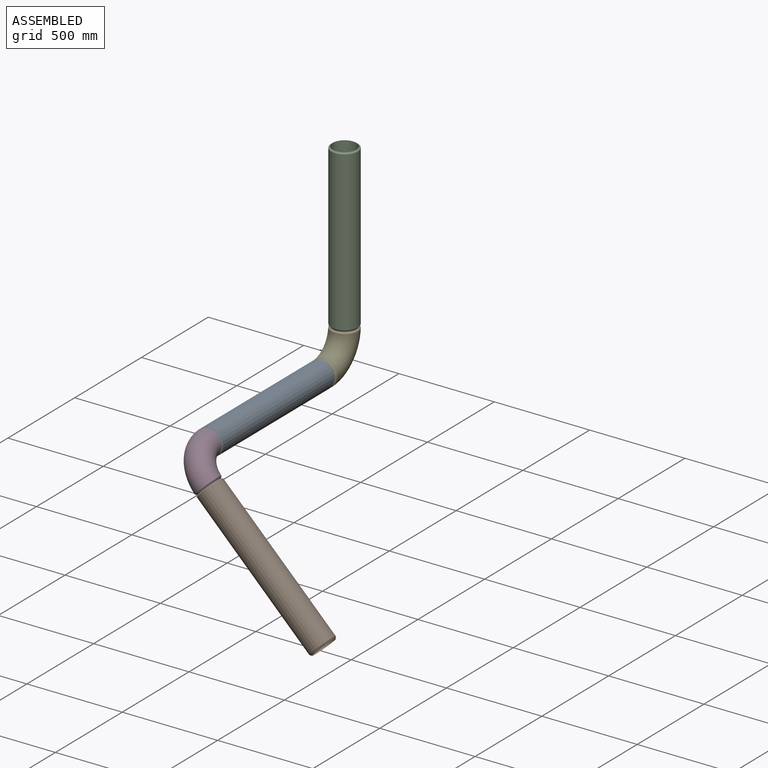
[diagram: assembled view]
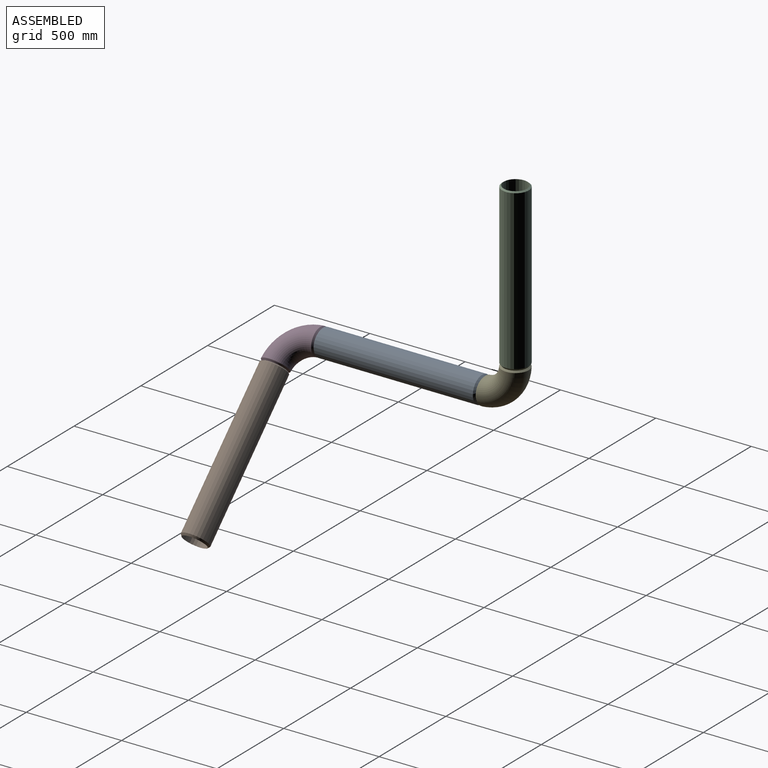
[diagram: assembled view, second angle]
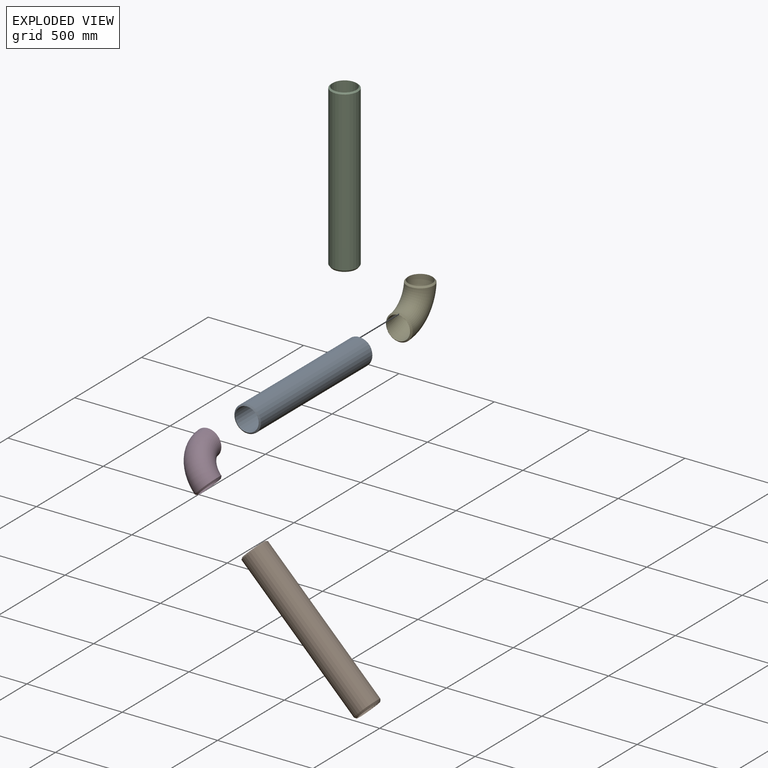
[diagram: exploded view]
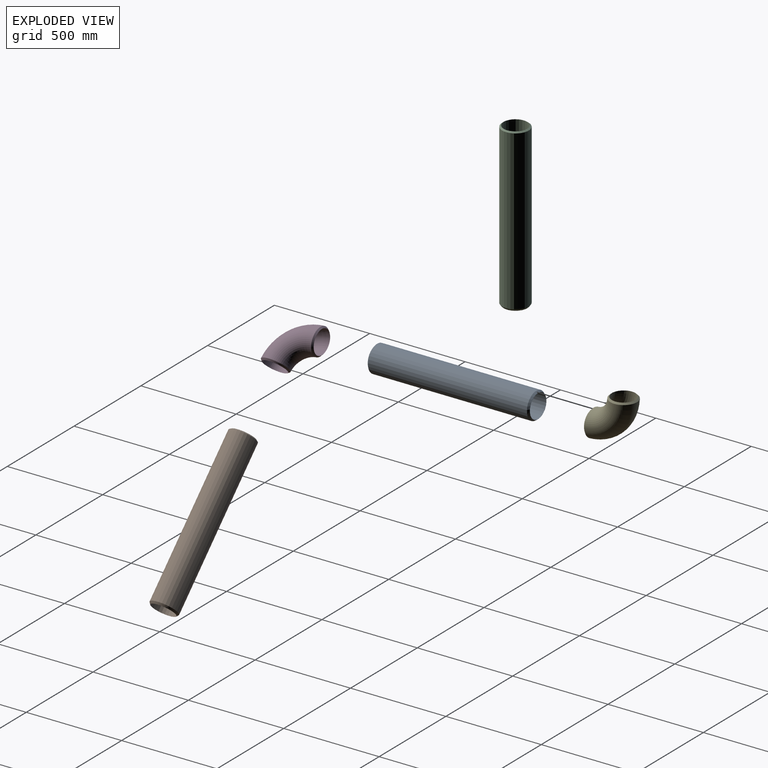
[diagram: exploded view, second angle]
ASSEMBLY  parts=5 mates=4
PART A: 5 faces, bbox 139.7x850x139.7 mm
  f0: cylinder r=61.85mm len=850mm, axis (0,1,0), area 330322.8mm2, adj f2,f3
  f1: cylinder r=69.85mm len=833.86mm, axis (0,1,0), area 365965.5mm2, adj f3,f4
  f2: plane 124.35x124.35mm, normal (0,1,0), area 127.3mm2, adj f0,f4
  f3: cone r=61.85mm half-angle=52.5deg, axis (0,1,0), area 4172.1mm2, adj f0,f1
  f4: cone r=69.85mm half-angle=37.5deg, axis (0,-1,0), area 5228.1mm2, adj f1,f2
PART B: same geometry as A
PART C: same geometry as A
PART D: 6 faces, bbox 139.8x253.9x253.9 mm
  f0: torus R=164.85mm, axis (-1,0,0), area 100591mm2, adj f1,f2,f4,f5
  f1: plane 123.77x62.12mm, normal (0,0,-1), area 34.9mm2, adj f0,f5
  f2: plane 123.72x62.07mm, normal (0,1,0), area 34mm2, adj f0,f4
  f3: torus R=164.85mm, axis (-1,0,0), area 107063.6mm2, adj f4,f5
  f4: bspline ~139.86x139.72mm, area 4655.3mm2, adj f0,f2,f3
  f5: bspline ~139.77x139.57mm, area 4632.1mm2, adj f0,f1,f3
PART E: same geometry as D
PLACE A at identity fixed
PLACE B rot(axis=(-0.86,-0.36,-0.36),98.4deg) t=(717.61,-1014.85,-717.61)mm
PLACE C rot(axis=(-1,0,0),90deg) t=(0,164.85,164.85)mm
PLACE D rot(axis=(0,-1,0),45deg) t=(116.57,-1014.85,-116.57)mm
PLACE E rot(axis=(1,0,0),180deg) t=(0,164.85,164.85)mm
MATE fastened D.f1 <-> B.f0  axis (0.71,0,-0.71) through (116.57,-1014.85,-116.57)mm
MATE fastened E.f1 <-> C.f0  axis (0,0,1) through (0,164.85,164.85)mm
MATE fastened E.f2 <-> A.f0  axis (0,-1,0) through (0,0,0)mm
MATE cylindrical A.f0 <-> D.f2  axis (0,1,0) through (0,-850,0)mm
